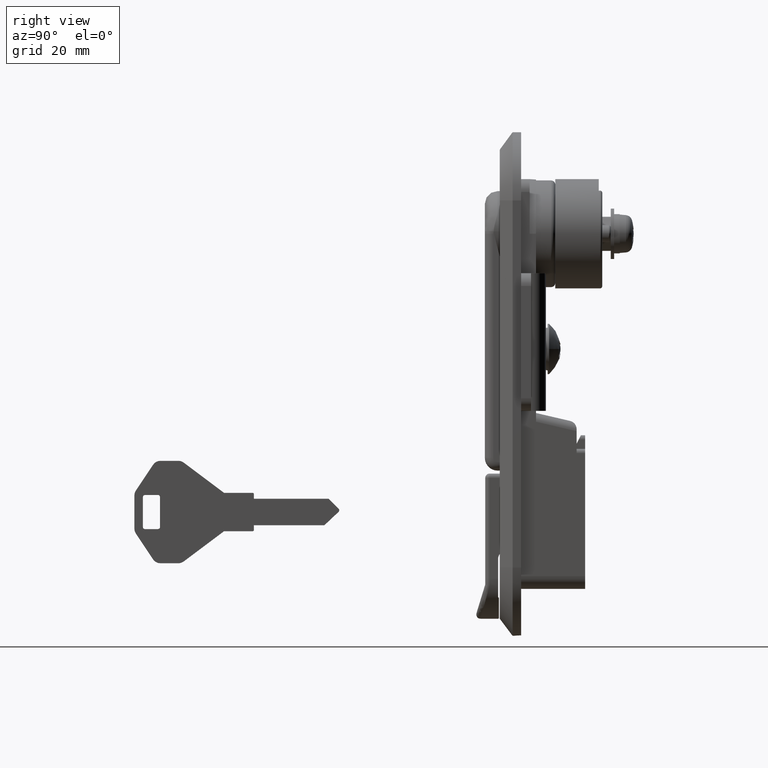
[diagram: clean part render]
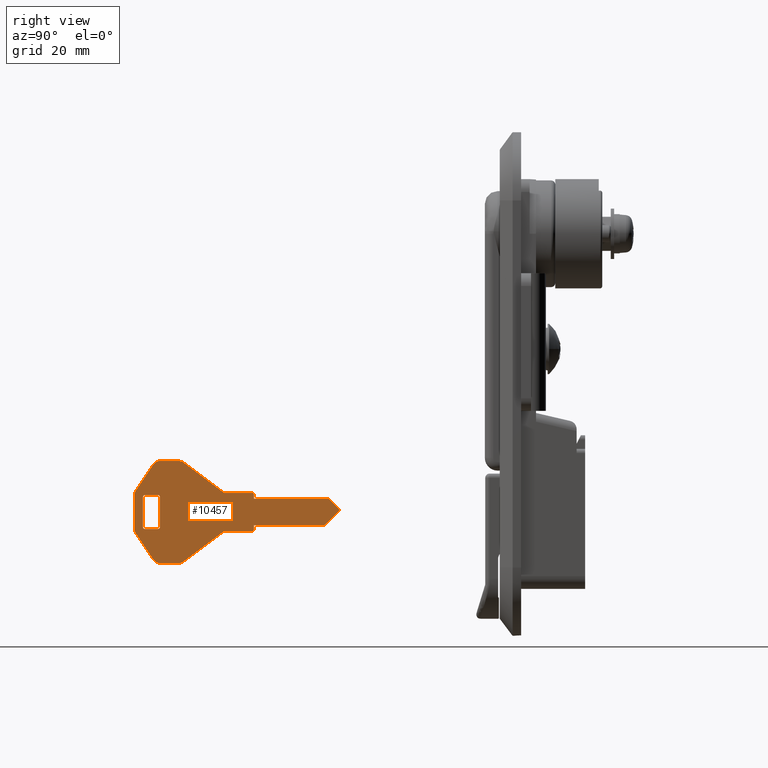
[diagram: same view with one face highlighted and labeled with its STEP entity id]
A machine part, right view. The second image highlights one B-rep face of the part: STEP entity #10457.
In plain terms, the highlighted planar face has unit normal (-1, 0, 0).
Its self-contained STEP definition (entity closure, byte-faithful):
#1813 = CARTESIAN_POINT ( 'NONE',  ( -74.08108402283591000, -0.9499999999999999600, -76.79999999999999700 ) ) ;
#1814 = CARTESIAN_POINT ( 'NONE',  ( -75.28108402283589800, -0.9499999999999999600, -77.20000000000000300 ) ) ;
#1815 = DIRECTION ( 'NONE',  ( -1.000000000000000000, 0.0000000000000000000, 0.0000000000000000000 ) ) ;
#1816 = VECTOR ( 'NONE', #1815, 1000.000000000000000 ) ;
#1817 = CARTESIAN_POINT ( 'NONE',  ( -75.28108402283589800, -0.9499999999999999600, -77.20000000000000300 ) ) ;
#1818 = LINE ( 'NONE', #1817, #1816 ) ;
#1819 = CARTESIAN_POINT ( 'NONE',  ( -79.54405002283590400, -0.9499999999999999600, -77.20000000000000300 ) ) ;
#1836 = CARTESIAN_POINT ( 'NONE',  ( -85.61445302283588900, -0.9499999999999999600, -69.09445500000019500 ) ) ;
#1837 = DIRECTION ( 'NONE',  ( 0.0000000000000000000, 0.0000000000000000000, 1.000000000000000000 ) ) ;
#1838 = VECTOR ( 'NONE', #1837, 1000.000000000000000 ) ;
#1839 = CARTESIAN_POINT ( 'NONE',  ( -85.61445302283588900, -0.9499999999999999600, -69.09445500000019500 ) ) ;
#1840 = LINE ( 'NONE', #1839, #1838 ) ;
#1841 = CARTESIAN_POINT ( 'NONE',  ( -85.61445302283588900, -0.9499999999999999600, -61.30555700000009300 ) ) ;
#1842 = CARTESIAN_POINT ( 'NONE',  ( -85.27851802283589700, -0.9499999999999999600, -60.19615100000020600 ) ) ;
#1843 = DIRECTION ( 'NONE',  ( 0.0000000000000000000, 0.0000000000000000000, 1.000000000000000000 ) ) ;
#1844 = DIRECTION ( 'NONE',  ( 0.0000000000000000000, -1.000000000000000000, 0.0000000000000000000 ) ) ;
#1845 = CARTESIAN_POINT ( 'NONE',  ( -83.61461153708710000, -0.9499999999999999600, -61.30555700000009300 ) ) ;
#1846 = AXIS2_PLACEMENT_3D ( 'NONE', #1845, #1844, #1843 ) ;
#1847 = CIRCLE ( 'NONE', #1846, 1.999841485748846000 ) ;
#1848 = DIRECTION ( 'NONE',  ( 1.000000000000000000, 0.0000000000000000000, 0.0000000000000000000 ) ) ;
#1849 = DIRECTION ( 'NONE',  ( 0.0000000000000000000, 1.000000000000000000, 0.0000000000000000000 ) ) ;
#1850 = CARTESIAN_POINT ( 'NONE',  ( 0.0000000000000000000, -0.9500000000000130600, 0.0000000000000000000 ) ) ;
#1851 = AXIS2_PLACEMENT_3D ( 'NONE', #1850, #1849, #1848 ) ;
#1852 = PLANE ( 'NONE',  #1851 ) ;
#1853 = FACE_BOUND ( 'NONE', #10560, .T. ) ;
#1854 = FACE_OUTER_BOUND ( 'NONE', #10458, .T. ) ;
#1860 = AXIS2_PLACEMENT_3D ( 'NONE', #1924, #1923, #1922 ) ;
#1861 = CIRCLE ( 'NONE', #1860, 2.000000000000001800 ) ;
#1862 = CARTESIAN_POINT ( 'NONE',  ( -74.08108401294600800, -0.9499999999999999600, -53.60000000741749900 ) ) ;
#1863 = DIRECTION ( 'NONE',  ( 0.8000000101408510900, 0.0000000000000000000, -0.5999999864788649900 ) ) ;
#1864 = VECTOR ( 'NONE', #1863, 1000.000000000000200 ) ;
#1865 = CARTESIAN_POINT ( 'NONE',  ( -74.08108402283591000, -0.9499999999999999600, -53.60000000000000100 ) ) ;
#1866 = LINE ( 'NONE', #1865, #1864 ) ;
#1867 = CARTESIAN_POINT ( 'NONE',  ( -64.61441702283589400, -0.9499999999999999600, -60.69999999999999600 ) ) ;
#1891 = DIRECTION ( 'NONE',  ( 0.0000000000000000000, -1.000000000000000000, 0.0000000000000000000 ) ) ;
#1892 = CARTESIAN_POINT ( 'NONE',  ( -75.28108402283589800, -0.9499999999999999600, -75.20000000000000300 ) ) ;
#1893 = AXIS2_PLACEMENT_3D ( 'NONE', #1892, #1891, #1955 ) ;
#1894 = CIRCLE ( 'NONE', #1893, 2.000000000000001800 ) ;
#1895 = CARTESIAN_POINT ( 'NONE',  ( -57.61441702283590200, -0.9499999999999999600, -61.00000000000000000 ) ) ;
#1896 = CARTESIAN_POINT ( 'NONE',  ( -57.61441702283590200, -0.9499999999999999600, -62.10000000000000100 ) ) ;
#1897 = DIRECTION ( 'NONE',  ( 1.000000000000000000, 0.0000000000000000000, 0.0000000000000000000 ) ) ;
#1898 = VECTOR ( 'NONE', #1897, 1000.000000000000000 ) ;
#1899 = CARTESIAN_POINT ( 'NONE',  ( -57.61441702283590200, -0.9499999999999999600, -62.10000000000000100 ) ) ;
#1900 = LINE ( 'NONE', #1899, #1898 ) ;
#1901 = CARTESIAN_POINT ( 'NONE',  ( -40.11441702283595100, -0.9499999999999999600, -62.10000000000000100 ) ) ;
#1902 = DIRECTION ( 'NONE',  ( 0.7081753001309127900, 0.0000000000000000000, -0.7060366451427939600 ) ) ;
#1903 = VECTOR ( 'NONE', #1902, 1000.000000000000100 ) ;
#1904 = CARTESIAN_POINT ( 'NONE',  ( -40.11441702283595100, -0.9499999999999999600, -62.10000000000000100 ) ) ;
#1905 = LINE ( 'NONE', #1904, #1903 ) ;
#1906 = CARTESIAN_POINT ( 'NONE',  ( -37.76139902283595300, -0.9499999999999999600, -64.44591200000009200 ) ) ;
#1907 = DIRECTION ( 'NONE',  ( 2.775557561562888800E-014, 0.0000000000000000000, 1.000000000000000000 ) ) ;
#1908 = DIRECTION ( 'NONE',  ( 0.0000000000000000000, -1.000000000000000000, 0.0000000000000000000 ) ) ;
#1909 = CARTESIAN_POINT ( 'NONE',  ( -38.11441702283594400, -0.9499999999999999600, -64.79999999999999700 ) ) ;
#1910 = AXIS2_PLACEMENT_3D ( 'NONE', #1909, #1908, #1907 ) ;
#1911 = CIRCLE ( 'NONE', #1910, 0.5000000000000004400 ) ;
#1912 = CARTESIAN_POINT ( 'NONE',  ( -37.77232255420779700, -0.9499999999999999600, -65.16465240234249700 ) ) ;
#1913 = DIRECTION ( 'NONE',  ( -0.7293048212000089500, 0.0000000000000000000, -0.6841889196518917700 ) ) ;
#1914 = VECTOR ( 'NONE', #1913, 1000.000000000000200 ) ;
#1915 = CARTESIAN_POINT ( 'NONE',  ( -37.77232302283589900, -0.9499999999999999600, -65.16465300000020000 ) ) ;
#1916 = LINE ( 'NONE', #1915, #1914 ) ;
#1917 = DIRECTION ( 'NONE',  ( 1.000000000000000000, 0.0000000000000000000, 0.0000000000000000000 ) ) ;
#1918 = VECTOR ( 'NONE', #1917, 1000.000000000000000 ) ;
#1919 = CARTESIAN_POINT ( 'NONE',  ( -79.54405002283590400, -0.9499999999999999600, -53.19999999999999600 ) ) ;
#1920 = LINE ( 'NONE', #1919, #1918 ) ;
#1921 = CARTESIAN_POINT ( 'NONE',  ( -75.28108402283589800, -0.9499999999999999600, -53.19999999999999600 ) ) ;
#1922 = DIRECTION ( 'NONE',  ( 0.0000000000000000000, 0.0000000000000000000, 1.000000000000000000 ) ) ;
#1923 = DIRECTION ( 'NONE',  ( 0.0000000000000000000, -1.000000000000000000, 0.0000000000000000000 ) ) ;
#1924 = CARTESIAN_POINT ( 'NONE',  ( -75.28108402283589800, -0.9499999999999999600, -55.19999999999999600 ) ) ;
#1925 = DIRECTION ( 'NONE',  ( 0.0000000000000000000, -1.000000000000000000, 0.0000000000000000000 ) ) ;
#1926 = CARTESIAN_POINT ( 'NONE',  ( -83.61465116614900200, -0.9499999999999999600, -69.09445500000019500 ) ) ;
#1927 = AXIS2_PLACEMENT_3D ( 'NONE', #1926, #1925, #1988 ) ;
#1928 = CIRCLE ( 'NONE', #1927, 1.999801856686925100 ) ;
#1929 = CARTESIAN_POINT ( 'NONE',  ( -41.11441702283595100, -0.9499999999999999600, -68.29999999999999700 ) ) ;
#1930 = DIRECTION ( 'NONE',  ( -1.000000000000000000, 0.0000000000000000000, 0.0000000000000000000 ) ) ;
#1931 = VECTOR ( 'NONE', #1930, 1000.000000000000000 ) ;
#1932 = CARTESIAN_POINT ( 'NONE',  ( -41.11441702283595100, -0.9499999999999999600, -68.29999999999999700 ) ) ;
#1933 = LINE ( 'NONE', #1932, #1931 ) ;
#1934 = CARTESIAN_POINT ( 'NONE',  ( -57.61441702283590200, -0.9499999999999999600, -68.29999999999999700 ) ) ;
#1935 = DIRECTION ( 'NONE',  ( 0.0000000000000000000, 0.0000000000000000000, -1.000000000000000000 ) ) ;
#1936 = VECTOR ( 'NONE', #1935, 1000.000000000000000 ) ;
#1937 = CARTESIAN_POINT ( 'NONE',  ( -57.61441702283590200, -0.9499999999999999600, -68.29999999999999700 ) ) ;
#1938 = LINE ( 'NONE', #1937, #1936 ) ;
#1939 = CARTESIAN_POINT ( 'NONE',  ( -57.61441702283590200, -0.9499999999999999600, -69.40000000000000600 ) ) ;
#1940 = DIRECTION ( 'NONE',  ( 0.0000000000000000000, 0.0000000000000000000, 1.000000000000000000 ) ) ;
#1941 = DIRECTION ( 'NONE',  ( 0.0000000000000000000, -1.000000000000000000, 0.0000000000000000000 ) ) ;
#1942 = CARTESIAN_POINT ( 'NONE',  ( -57.91441702283590600, -0.9499999999999999600, -69.40000000000000600 ) ) ;
#1943 = AXIS2_PLACEMENT_3D ( 'NONE', #1942, #1941, #1940 ) ;
#1944 = CIRCLE ( 'NONE', #1943, 0.2999999999999947200 ) ;
#1945 = CARTESIAN_POINT ( 'NONE',  ( -57.91441702283590600, -0.9499999999999999600, -69.70000000000000300 ) ) ;
#1946 = DIRECTION ( 'NONE',  ( -1.000000000000000000, 0.0000000000000000000, 0.0000000000000000000 ) ) ;
#1947 = VECTOR ( 'NONE', #1946, 1000.000000000000000 ) ;
#1948 = CARTESIAN_POINT ( 'NONE',  ( -57.91441702283590600, -0.9499999999999999600, -69.70000000000000300 ) ) ;
#1949 = LINE ( 'NONE', #1948, #1947 ) ;
#1950 = CARTESIAN_POINT ( 'NONE',  ( -64.61441702283589400, -0.9499999999999999600, -69.70000000000000300 ) ) ;
#1951 = DIRECTION ( 'NONE',  ( -0.8000000101408412100, 0.0000000000000000000, -0.5999999864788782000 ) ) ;
#1952 = VECTOR ( 'NONE', #1951, 1000.000000000000100 ) ;
#1953 = CARTESIAN_POINT ( 'NONE',  ( -64.61441702283589400, -0.9499999999999999600, -69.70000000000000300 ) ) ;
#1954 = LINE ( 'NONE', #1953, #1952 ) ;
#1955 = DIRECTION ( 'NONE',  ( -6.938893903907222100E-015, 0.0000000000000000000, 1.000000000000000000 ) ) ;
#1956 = DIRECTION ( 'NONE',  ( 0.0000000000000000000, 1.000000000000000000, 0.0000000000000000000 ) ) ;
#1957 = CARTESIAN_POINT ( 'NONE',  ( -83.11441702283589400, -0.9499999999999999600, -68.70000000000000300 ) ) ;
#1958 = AXIS2_PLACEMENT_3D ( 'NONE', #1957, #1956, #2019 ) ;
#1959 = CIRCLE ( 'NONE', #1958, 0.5000000000000004400 ) ;
#1960 = CARTESIAN_POINT ( 'NONE',  ( -83.11441702283589400, -0.9500000000000130600, -69.20000000000000300 ) ) ;
#1977 = DIRECTION ( 'NONE',  ( 6.938893903907222100E-015, 0.0000000000000000000, 1.000000000000000000 ) ) ;
#1978 = DIRECTION ( 'NONE',  ( 0.0000000000000000000, -1.000000000000000000, 0.0000000000000000000 ) ) ;
#1979 = CARTESIAN_POINT ( 'NONE',  ( -79.54405002283590400, -0.9499999999999999600, -75.20000000000000300 ) ) ;
#1980 = AXIS2_PLACEMENT_3D ( 'NONE', #1979, #1978, #1977 ) ;
#1981 = CIRCLE ( 'NONE', #1980, 2.000000000000001800 ) ;
#1982 = CARTESIAN_POINT ( 'NONE',  ( -81.20815052764839900, -0.9499999999999999600, -76.30940051824529700 ) ) ;
#1983 = DIRECTION ( 'NONE',  ( -0.5547002591226142300, 0.0000000000000000000, 0.8320502524062503000 ) ) ;
#1984 = VECTOR ( 'NONE', #1983, 1000.000000000000000 ) ;
#1985 = CARTESIAN_POINT ( 'NONE',  ( -81.20815002283590900, -0.9499999999999999600, -76.30939999999999700 ) ) ;
#1986 = LINE ( 'NONE', #1985, #1984 ) ;
#1987 = CARTESIAN_POINT ( 'NONE',  ( -85.27851802283589700, -0.9499999999999999600, -70.20384900000019000 ) ) ;
#1988 = DIRECTION ( 'NONE',  ( 1.387916283946831600E-014, 0.0000000000000000000, 1.000000000000000000 ) ) ;
#1989 = CARTESIAN_POINT ( 'NONE',  ( -85.27851802283589700, -0.9499999999999999600, -60.19615100000020600 ) ) ;
#1990 = LINE ( 'NONE', #1989, #2051 ) ;
#1991 = CARTESIAN_POINT ( 'NONE',  ( -81.20815002283590900, -0.9499999999999999600, -54.09060000000000200 ) ) ;
#1992 = DIRECTION ( 'NONE',  ( 0.0000000000000000000, 0.0000000000000000000, 1.000000000000000000 ) ) ;
#1993 = DIRECTION ( 'NONE',  ( 0.0000000000000000000, -1.000000000000000000, 0.0000000000000000000 ) ) ;
#1994 = CARTESIAN_POINT ( 'NONE',  ( -79.54404917252649900, -0.9499999999999999600, -55.19999999999999600 ) ) ;
#1995 = AXIS2_PLACEMENT_3D ( 'NONE', #1994, #1993, #1992 ) ;
#1996 = CIRCLE ( 'NONE', #1995, 2.000000000000001800 ) ;
#1997 = DIRECTION ( 'NONE',  ( 0.0000000000000000000, 0.0000000000000000000, 1.000000000000000000 ) ) ;
#1998 = DIRECTION ( 'NONE',  ( 0.0000000000000000000, 1.000000000000000000, 0.0000000000000000000 ) ) ;
#1999 = CARTESIAN_POINT ( 'NONE',  ( -80.11441702283589400, -0.9499999999999999600, -61.69999999999999600 ) ) ;
#2000 = AXIS2_PLACEMENT_3D ( 'NONE', #1999, #1998, #1997 ) ;
#2001 = CIRCLE ( 'NONE', #2000, 0.5000000000000004400 ) ;
#2002 = CARTESIAN_POINT ( 'NONE',  ( -80.11441702283589400, -0.9499999999999999600, -61.19999999999999600 ) ) ;
#2003 = DIRECTION ( 'NONE',  ( 1.000000000000000000, 0.0000000000000000000, 0.0000000000000000000 ) ) ;
#2004 = VECTOR ( 'NONE', #2003, 1000.000000000000000 ) ;
#2005 = CARTESIAN_POINT ( 'NONE',  ( 0.0000000000000000000, -0.9500000000000130600, -61.19999999999999600 ) ) ;
#2006 = LINE ( 'NONE', #2005, #2004 ) ;
#2007 = CARTESIAN_POINT ( 'NONE',  ( -83.11441702283589400, -0.9499999999999999600, -61.19999999999999600 ) ) ;
#2008 = DIRECTION ( 'NONE',  ( 0.0000000000000000000, 0.0000000000000000000, 1.000000000000000000 ) ) ;
#2009 = DIRECTION ( 'NONE',  ( 0.0000000000000000000, 1.000000000000000000, 0.0000000000000000000 ) ) ;
#2010 = CARTESIAN_POINT ( 'NONE',  ( -83.11441702283589400, -0.9499999999999999600, -61.69999999999999600 ) ) ;
#2011 = AXIS2_PLACEMENT_3D ( 'NONE', #2010, #2009, #2008 ) ;
#2012 = CIRCLE ( 'NONE', #2011, 0.5000000000000004400 ) ;
#2013 = CARTESIAN_POINT ( 'NONE',  ( -83.61441702283589400, -0.9499999999999999600, -61.69999999999999600 ) ) ;
#2014 = DIRECTION ( 'NONE',  ( 0.0000000000000000000, 0.0000000000000000000, 1.000000000000000000 ) ) ;
#2015 = VECTOR ( 'NONE', #2014, 1000.000000000000000 ) ;
#2016 = CARTESIAN_POINT ( 'NONE',  ( -83.61441702283589400, -0.9500000000000130600, 0.0000000000000000000 ) ) ;
#2017 = LINE ( 'NONE', #2016, #2015 ) ;
#2018 = CARTESIAN_POINT ( 'NONE',  ( -83.61441702283589400, -0.9499999999999999600, -68.70000000000000300 ) ) ;
#2019 = DIRECTION ( 'NONE',  ( 0.0000000000000000000, 0.0000000000000000000, 1.000000000000000000 ) ) ;
#2020 = DIRECTION ( 'NONE',  ( 1.000000000000000000, 0.0000000000000000000, 0.0000000000000000000 ) ) ;
#2021 = VECTOR ( 'NONE', #2020, 1000.000000000000000 ) ;
#2022 = CARTESIAN_POINT ( 'NONE',  ( -64.61441702283589400, -0.9499999999999999600, -60.69999999999999600 ) ) ;
#2023 = LINE ( 'NONE', #2022, #2021 ) ;
#2024 = CARTESIAN_POINT ( 'NONE',  ( -57.91441702283590600, -0.9499999999999999600, -60.69999999999999600 ) ) ;
#2025 = DIRECTION ( 'NONE',  ( 0.0000000000000000000, 0.0000000000000000000, 1.000000000000000000 ) ) ;
#2026 = DIRECTION ( 'NONE',  ( 0.0000000000000000000, -1.000000000000000000, 0.0000000000000000000 ) ) ;
#2027 = CARTESIAN_POINT ( 'NONE',  ( -57.91441702283590600, -0.9499999999999999600, -61.00000000000000000 ) ) ;
#2028 = AXIS2_PLACEMENT_3D ( 'NONE', #2027, #2026, #2025 ) ;
#2029 = CIRCLE ( 'NONE', #2028, 0.3000000000000016500 ) ;
#2030 = DIRECTION ( 'NONE',  ( 0.0000000000000000000, 0.0000000000000000000, -1.000000000000000000 ) ) ;
#2031 = VECTOR ( 'NONE', #2030, 1000.000000000000000 ) ;
#2032 = CARTESIAN_POINT ( 'NONE',  ( -57.61441702283590200, -0.9499999999999999600, -61.00000000000000000 ) ) ;
#2033 = LINE ( 'NONE', #2032, #2031 ) ;
#2034 = DIRECTION ( 'NONE',  ( -1.000000000000000000, 0.0000000000000000000, 0.0000000000000000000 ) ) ;
#2035 = VECTOR ( 'NONE', #2034, 1000.000000000000000 ) ;
#2036 = CARTESIAN_POINT ( 'NONE',  ( 0.0000000000000000000, -0.9500000000000130600, -69.20000000000000300 ) ) ;
#2037 = LINE ( 'NONE', #2036, #2035 ) ;
#2038 = CARTESIAN_POINT ( 'NONE',  ( -80.11441702283589400, -0.9499999999999999600, -69.20000000000000300 ) ) ;
#2039 = DIRECTION ( 'NONE',  ( 0.0000000000000000000, 0.0000000000000000000, 1.000000000000000000 ) ) ;
#2040 = DIRECTION ( 'NONE',  ( 0.0000000000000000000, 1.000000000000000000, 0.0000000000000000000 ) ) ;
#2041 = CARTESIAN_POINT ( 'NONE',  ( -80.11441702283589400, -0.9499999999999999600, -68.70000000000000300 ) ) ;
#2042 = AXIS2_PLACEMENT_3D ( 'NONE', #2041, #2040, #2039 ) ;
#2043 = CIRCLE ( 'NONE', #2042, 0.5000000000000004400 ) ;
#2044 = CARTESIAN_POINT ( 'NONE',  ( -79.61441702283590900, -0.9499999999999999600, -68.70000000000000300 ) ) ;
#2045 = CARTESIAN_POINT ( 'NONE',  ( -79.61441702283590900, -0.9499999999999999600, -61.69999999999999600 ) ) ;
#2046 = DIRECTION ( 'NONE',  ( 0.0000000000000000000, 0.0000000000000000000, -1.000000000000000000 ) ) ;
#2047 = VECTOR ( 'NONE', #2046, 1000.000000000000000 ) ;
#2048 = CARTESIAN_POINT ( 'NONE',  ( -79.61441702283590900, -0.9500000000000130600, 0.0000000000000000000 ) ) ;
#2049 = LINE ( 'NONE', #2048, #2047 ) ;
#2050 = DIRECTION ( 'NONE',  ( 0.5547002591226069000, 0.0000000000000000000, 0.8320502524062549600 ) ) ;
#2051 = VECTOR ( 'NONE', #2050, 1000.000000000000100 ) ;
#5902 = VERTEX_POINT ( 'NONE', #13329 ) ;
#10445 = VERTEX_POINT ( 'NONE', #1819 ) ;
#10446 = ORIENTED_EDGE ( 'NONE', *, *, #10447, .F. ) ;
#10447 = EDGE_CURVE ( 'NONE', #10448, #10445, #1818, .T. ) ;
#10448 = VERTEX_POINT ( 'NONE', #1814 ) ;
#10449 = ORIENTED_EDGE ( 'NONE', *, *, #10506, .T. ) ;
#10450 = VERTEX_POINT ( 'NONE', #1813 ) ;
#10457 = ADVANCED_FACE ( 'NONE', ( #1854, #1853 ), #1852, .F. ) ;
#10458 = EDGE_LOOP ( 'NONE', ( #10459, #10464, #10522, #10525, #10528, #10446, #10449, #10507, #10510, #10513, #10516, #10519, #10492, #10495, #10498, #10501, #10504, #10571, #10574, #10484, #10487, #10490, #10555, #10558 ) ) ;
#10459 = ORIENTED_EDGE ( 'NONE', *, *, #10461, .T. ) ;
#10461 = EDGE_CURVE ( 'NONE', #10462, #10463, #1847, .T. ) ;
#10462 = VERTEX_POINT ( 'NONE', #1842 ) ;
#10463 = VERTEX_POINT ( 'NONE', #1841 ) ;
#10464 = ORIENTED_EDGE ( 'NONE', *, *, #10465, .F. ) ;
#10465 = EDGE_CURVE ( 'NONE', #10466, #10463, #1840, .T. ) ;
#10466 = VERTEX_POINT ( 'NONE', #1836 ) ;
#10483 = VERTEX_POINT ( 'NONE', #1867 ) ;
#10484 = ORIENTED_EDGE ( 'NONE', *, *, #10485, .F. ) ;
#10485 = EDGE_CURVE ( 'NONE', #10486, #10483, #1866, .T. ) ;
#10486 = VERTEX_POINT ( 'NONE', #1862 ) ;
#10487 = ORIENTED_EDGE ( 'NONE', *, *, #10488, .T. ) ;
#10488 = EDGE_CURVE ( 'NONE', #10486, #10489, #1861, .T. ) ;
#10489 = VERTEX_POINT ( 'NONE', #1921 ) ;
#10490 = ORIENTED_EDGE ( 'NONE', *, *, #10491, .F. ) ;
#10491 = EDGE_CURVE ( 'NONE', #5902, #10489, #1920, .T. ) ;
#10492 = ORIENTED_EDGE ( 'NONE', *, *, #10493, .F. ) ;
#10493 = EDGE_CURVE ( 'NONE', #10494, #10521, #1916, .T. ) ;
#10494 = VERTEX_POINT ( 'NONE', #1912 ) ;
#10495 = ORIENTED_EDGE ( 'NONE', *, *, #10496, .T. ) ;
#10496 = EDGE_CURVE ( 'NONE', #10494, #10497, #1911, .T. ) ;
#10497 = VERTEX_POINT ( 'NONE', #1906 ) ;
#10498 = ORIENTED_EDGE ( 'NONE', *, *, #10499, .F. ) ;
#10499 = EDGE_CURVE ( 'NONE', #10500, #10497, #1905, .T. ) ;
#10500 = VERTEX_POINT ( 'NONE', #1901 ) ;
#10501 = ORIENTED_EDGE ( 'NONE', *, *, #10502, .F. ) ;
#10502 = EDGE_CURVE ( 'NONE', #10503, #10500, #1900, .T. ) ;
#10503 = VERTEX_POINT ( 'NONE', #1896 ) ;
#10504 = ORIENTED_EDGE ( 'NONE', *, *, #10570, .F. ) ;
#10505 = VERTEX_POINT ( 'NONE', #1895 ) ;
#10506 = EDGE_CURVE ( 'NONE', #10448, #10450, #1894, .T. ) ;
#10507 = ORIENTED_EDGE ( 'NONE', *, *, #10508, .F. ) ;
#10508 = EDGE_CURVE ( 'NONE', #10509, #10450, #1954, .T. ) ;
#10509 = VERTEX_POINT ( 'NONE', #1950 ) ;
#10510 = ORIENTED_EDGE ( 'NONE', *, *, #10511, .F. ) ;
#10511 = EDGE_CURVE ( 'NONE', #10512, #10509, #1949, .T. ) ;
#10512 = VERTEX_POINT ( 'NONE', #1945 ) ;
#10513 = ORIENTED_EDGE ( 'NONE', *, *, #10514, .T. ) ;
#10514 = EDGE_CURVE ( 'NONE', #10512, #10515, #1944, .T. ) ;
#10515 = VERTEX_POINT ( 'NONE', #1939 ) ;
#10516 = ORIENTED_EDGE ( 'NONE', *, *, #10517, .F. ) ;
#10517 = EDGE_CURVE ( 'NONE', #10518, #10515, #1938, .T. ) ;
#10518 = VERTEX_POINT ( 'NONE', #1934 ) ;
#10519 = ORIENTED_EDGE ( 'NONE', *, *, #10520, .F. ) ;
#10520 = EDGE_CURVE ( 'NONE', #10521, #10518, #1933, .T. ) ;
#10521 = VERTEX_POINT ( 'NONE', #1929 ) ;
#10522 = ORIENTED_EDGE ( 'NONE', *, *, #10523, .T. ) ;
#10523 = EDGE_CURVE ( 'NONE', #10466, #10524, #1928, .T. ) ;
#10524 = VERTEX_POINT ( 'NONE', #1987 ) ;
#10525 = ORIENTED_EDGE ( 'NONE', *, *, #10526, .F. ) ;
#10526 = EDGE_CURVE ( 'NONE', #10527, #10524, #1986, .T. ) ;
#10527 = VERTEX_POINT ( 'NONE', #1982 ) ;
#10528 = ORIENTED_EDGE ( 'NONE', *, *, #10529, .T. ) ;
#10529 = EDGE_CURVE ( 'NONE', #10527, #10445, #1981, .T. ) ;
#10539 = VERTEX_POINT ( 'NONE', #1960 ) ;
#10540 = ORIENTED_EDGE ( 'NONE', *, *, #10541, .T. ) ;
#10541 = EDGE_CURVE ( 'NONE', #10539, #10542, #1959, .T. ) ;
#10542 = VERTEX_POINT ( 'NONE', #2018 ) ;
#10543 = ORIENTED_EDGE ( 'NONE', *, *, #10544, .T. ) ;
#10544 = EDGE_CURVE ( 'NONE', #10542, #10545, #2017, .T. ) ;
#10545 = VERTEX_POINT ( 'NONE', #2013 ) ;
#10546 = ORIENTED_EDGE ( 'NONE', *, *, #10547, .T. ) ;
#10547 = EDGE_CURVE ( 'NONE', #10545, #10548, #2012, .T. ) ;
#10548 = VERTEX_POINT ( 'NONE', #2007 ) ;
#10549 = ORIENTED_EDGE ( 'NONE', *, *, #10550, .T. ) ;
#10550 = EDGE_CURVE ( 'NONE', #10548, #10551, #2006, .T. ) ;
#10551 = VERTEX_POINT ( 'NONE', #2002 ) ;
#10552 = ORIENTED_EDGE ( 'NONE', *, *, #10553, .T. ) ;
#10553 = EDGE_CURVE ( 'NONE', #10551, #10563, #2001, .T. ) ;
#10555 = ORIENTED_EDGE ( 'NONE', *, *, #10556, .T. ) ;
#10556 = EDGE_CURVE ( 'NONE', #5902, #10557, #1996, .T. ) ;
#10557 = VERTEX_POINT ( 'NONE', #1991 ) ;
#10558 = ORIENTED_EDGE ( 'NONE', *, *, #10559, .F. ) ;
#10559 = EDGE_CURVE ( 'NONE', #10462, #10557, #1990, .T. ) ;
#10560 = EDGE_LOOP ( 'NONE', ( #10561, #10565, #10568, #10540, #10543, #10546, #10549, #10552 ) ) ;
#10561 = ORIENTED_EDGE ( 'NONE', *, *, #10562, .T. ) ;
#10562 = EDGE_CURVE ( 'NONE', #10563, #10564, #2049, .T. ) ;
#10563 = VERTEX_POINT ( 'NONE', #2045 ) ;
#10564 = VERTEX_POINT ( 'NONE', #2044 ) ;
#10565 = ORIENTED_EDGE ( 'NONE', *, *, #10566, .T. ) ;
#10566 = EDGE_CURVE ( 'NONE', #10564, #10567, #2043, .T. ) ;
#10567 = VERTEX_POINT ( 'NONE', #2038 ) ;
#10568 = ORIENTED_EDGE ( 'NONE', *, *, #10569, .T. ) ;
#10569 = EDGE_CURVE ( 'NONE', #10567, #10539, #2037, .T. ) ;
#10570 = EDGE_CURVE ( 'NONE', #10505, #10503, #2033, .T. ) ;
#10571 = ORIENTED_EDGE ( 'NONE', *, *, #10572, .T. ) ;
#10572 = EDGE_CURVE ( 'NONE', #10505, #10573, #2029, .T. ) ;
#10573 = VERTEX_POINT ( 'NONE', #2024 ) ;
#10574 = ORIENTED_EDGE ( 'NONE', *, *, #10575, .F. ) ;
#10575 = EDGE_CURVE ( 'NONE', #10483, #10573, #2023, .T. ) ;
#13329 = CARTESIAN_POINT ( 'NONE',  ( -79.54404917252649900, -0.9499999999999999600, -53.19999999999999600 ) ) ;